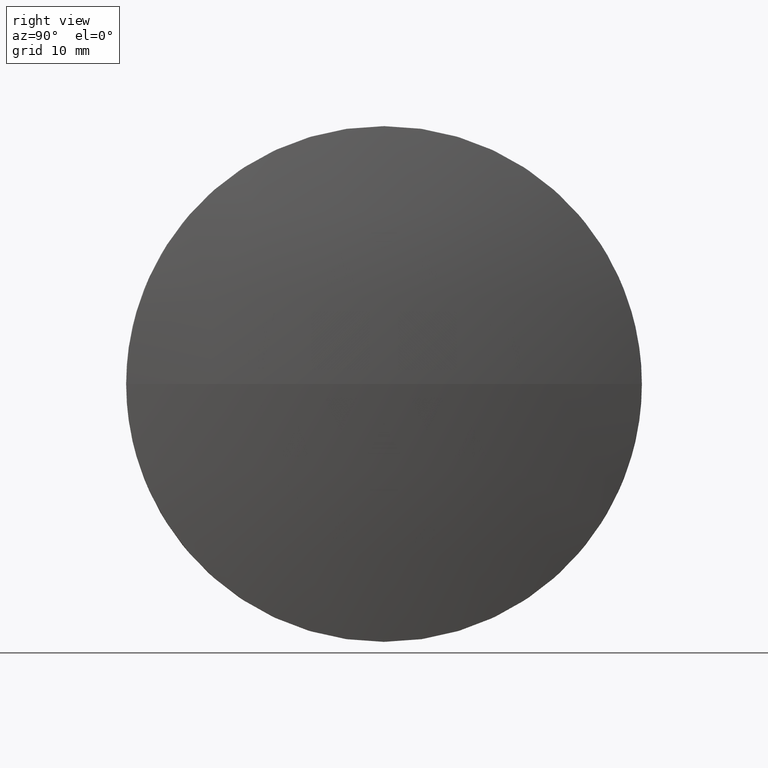
[diagram: clean part render]
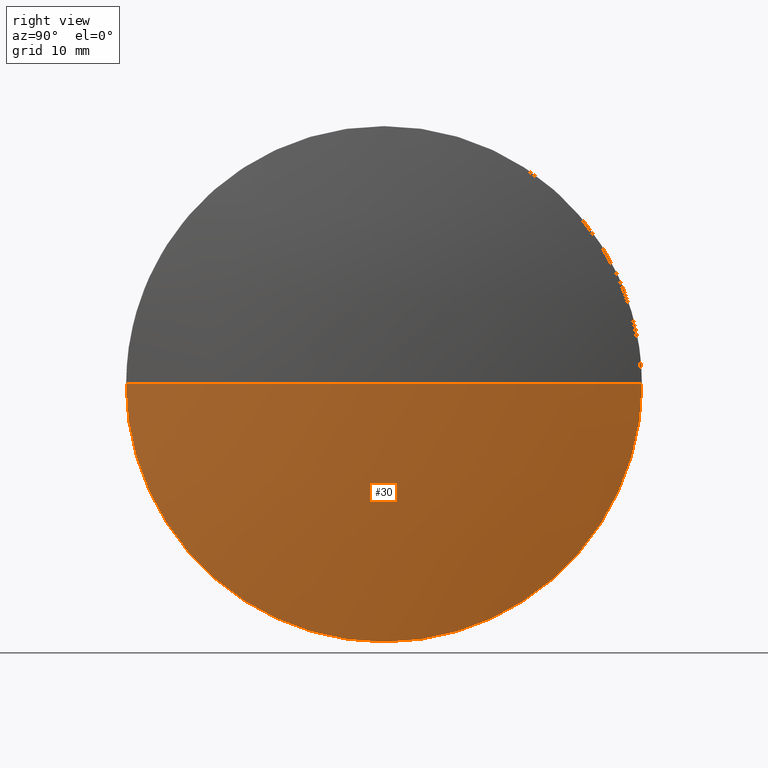
[diagram: same view with one face highlighted and labeled with its STEP entity id]
A machine part, right view. The second image highlights one B-rep face of the part: STEP entity #30.
In plain terms, the highlighted spherical surface has radius 135.608 mm.
Its self-contained STEP definition (entity closure, byte-faithful):
#2 = AXIS2_PLACEMENT_3D ( 'NONE', #27, #71, #48 ) ;
#7 = VERTEX_POINT ( 'NONE', #178 ) ;
#11 = CIRCLE ( 'NONE', #2, 135.6083333333331800 ) ;
#16 = CIRCLE ( 'NONE', #172, 25.40000000000000600 ) ;
#18 = CIRCLE ( 'NONE', #84, 25.40000000000000600 ) ;
#23 = SPHERICAL_SURFACE ( 'NONE', #152, 135.6083333333331800 ) ;
#24 = DIRECTION ( 'NONE',  ( 0.0000000000000000000, 0.0000000000000000000, 1.000000000000000000 ) ) ;
#27 = CARTESIAN_POINT ( 'NONE',  ( 101.8124867459092400, 130.4671098528243100, 0.0000000000000000000 ) ) ;
#30 = ADVANCED_FACE ( 'NONE', ( #95 ), #23, .T. ) ;
#41 = DIRECTION ( 'NONE',  ( -0.0000000000000000000, 0.0000000000000000000, -1.000000000000000000 ) ) ;
#44 = CARTESIAN_POINT ( 'NONE',  ( 235.0208200792424100, 155.8671098528243700, 0.0000000000000000000 ) ) ;
#47 = VERTEX_POINT ( 'NONE', #118 ) ;
#48 = DIRECTION ( 'NONE',  ( 1.000000000000000000, 0.0000000000000000000, 0.0000000000000000000 ) ) ;
#66 = VERTEX_POINT ( 'NONE', #44 ) ;
#68 = ORIENTED_EDGE ( 'NONE', *, *, #74, .T. ) ;
#70 = CARTESIAN_POINT ( 'NONE',  ( 237.4208200792424200, 130.4671098528243100, 0.0000000000000000000 ) ) ;
#71 = DIRECTION ( 'NONE',  ( -0.0000000000000000000, 0.0000000000000000000, 1.000000000000000000 ) ) ;
#72 = EDGE_CURVE ( 'NONE', #66, #47, #18, .T. ) ;
#74 = EDGE_CURVE ( 'NONE', #112, #7, #89, .T. ) ;
#77 = CARTESIAN_POINT ( 'NONE',  ( 101.8124867459092400, 130.4671098528243100, 0.0000000000000000000 ) ) ;
#79 = DIRECTION ( 'NONE',  ( 0.0000000000000000000, 0.0000000000000000000, 1.000000000000000000 ) ) ;
#81 = DIRECTION ( 'NONE',  ( 0.0000000000000000000, 1.000000000000000000, 1.224646799147353000E-016 ) ) ;
#82 = EDGE_CURVE ( 'NONE', #47, #7, #16, .T. ) ;
#84 = AXIS2_PLACEMENT_3D ( 'NONE', #121, #138, #79 ) ;
#89 = CIRCLE ( 'NONE', #174, 135.6083333333331800 ) ;
#95 = FACE_OUTER_BOUND ( 'NONE', #148, .T. ) ;
#106 = DIRECTION ( 'NONE',  ( 0.0000000000000000000, 1.224646799147353200E-016, -1.000000000000000000 ) ) ;
#112 = VERTEX_POINT ( 'NONE', #70 ) ;
#117 = DIRECTION ( 'NONE',  ( 0.0000000000000000000, 1.000000000000000000, 0.0000000000000000000 ) ) ;
#118 = CARTESIAN_POINT ( 'NONE',  ( 235.0208200792423800, 130.4671098528243900, -25.40000000000000600 ) ) ;
#121 = CARTESIAN_POINT ( 'NONE',  ( 235.0208200792423800, 130.4671098528243900, 0.0000000000000000000 ) ) ;
#131 = EDGE_CURVE ( 'NONE', #112, #66, #11, .T. ) ;
#138 = DIRECTION ( 'NONE',  ( -1.000000000000000000, -0.0000000000000000000, -0.0000000000000000000 ) ) ;
#139 = CARTESIAN_POINT ( 'NONE',  ( 235.0208200792423800, 130.4671098528243900, 0.0000000000000000000 ) ) ;
#147 = ORIENTED_EDGE ( 'NONE', *, *, #131, .F. ) ;
#148 = EDGE_LOOP ( 'NONE', ( #147, #68, #153, #159 ) ) ;
#152 = AXIS2_PLACEMENT_3D ( 'NONE', #77, #41, #117 ) ;
#153 = ORIENTED_EDGE ( 'NONE', *, *, #82, .F. ) ;
#157 = DIRECTION ( 'NONE',  ( -1.000000000000000000, -0.0000000000000000000, -0.0000000000000000000 ) ) ;
#159 = ORIENTED_EDGE ( 'NONE', *, *, #72, .F. ) ;
#172 = AXIS2_PLACEMENT_3D ( 'NONE', #139, #157, #24 ) ;
#174 = AXIS2_PLACEMENT_3D ( 'NONE', #185, #106, #81 ) ;
#178 = CARTESIAN_POINT ( 'NONE',  ( 235.0208200792424100, 105.0671098528243300, -3.110602869834275700E-015 ) ) ;
#185 = CARTESIAN_POINT ( 'NONE',  ( 101.8124867459092400, 130.4671098528243100, 0.0000000000000000000 ) ) ;